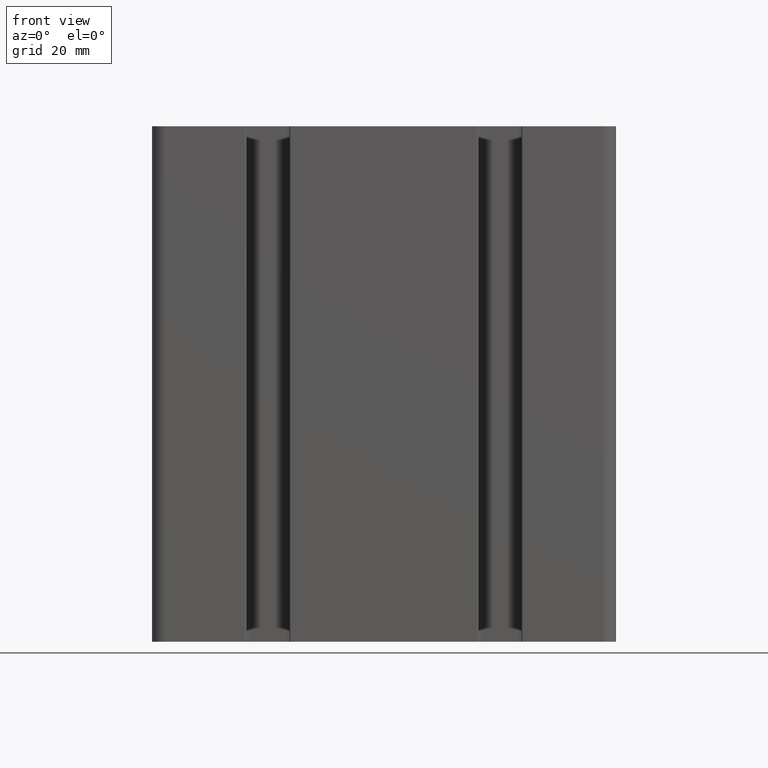
[diagram: clean part render]
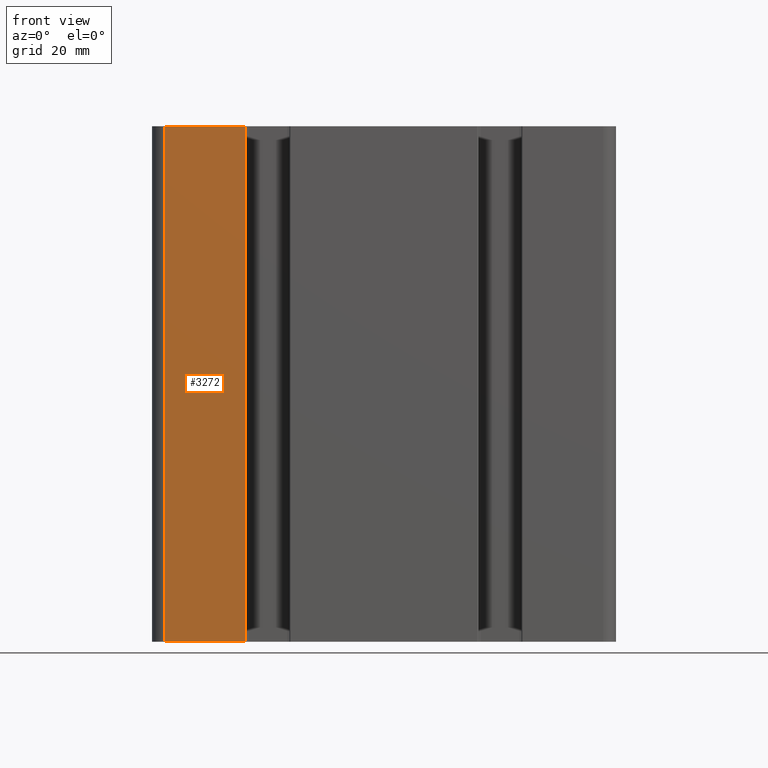
[diagram: same view with one face highlighted and labeled with its STEP entity id]
A machine part, front view. The second image highlights one B-rep face of the part: STEP entity #3272.
In plain terms, the highlighted planar face has unit normal (0, -1, 0).
Its self-contained STEP definition (entity closure, byte-faithful):
#97=PLANE('',#3569);
#246=FACE_OUTER_BOUND('',#414,.T.);
#414=EDGE_LOOP('',(#2591,#2592,#2593,#2594));
#716=LINE('',#5376,#1040);
#717=LINE('',#5379,#1041);
#718=LINE('',#5381,#1042);
#719=LINE('',#5382,#1043);
#1040=VECTOR('',#4399,100.);
#1041=VECTOR('',#4402,15.55);
#1042=VECTOR('',#4403,15.55);
#1043=VECTOR('',#4404,100.);
#1533=VERTEX_POINT('',#5372);
#1534=VERTEX_POINT('',#5374);
#1535=VERTEX_POINT('',#5378);
#1536=VERTEX_POINT('',#5380);
#1982=EDGE_CURVE('',#1533,#1534,#716,.T.);
#1983=EDGE_CURVE('',#1535,#1533,#717,.T.);
#1984=EDGE_CURVE('',#1536,#1534,#718,.T.);
#1985=EDGE_CURVE('',#1535,#1536,#719,.T.);
#2591=ORIENTED_EDGE('',*,*,#1983,.T.);
#2592=ORIENTED_EDGE('',*,*,#1982,.T.);
#2593=ORIENTED_EDGE('',*,*,#1984,.F.);
#2594=ORIENTED_EDGE('',*,*,#1985,.F.);
#3272=ADVANCED_FACE('',(#246),#97,.T.);
#3569=AXIS2_PLACEMENT_3D('',#5377,#4400,#4401);
#4399=DIRECTION('',(0.,0.,1.));
#4400=DIRECTION('center_axis',(0.,-1.,0.));
#4401=DIRECTION('ref_axis',(1.,0.,0.));
#4402=DIRECTION('',(1.,0.,0.));
#4403=DIRECTION('',(1.,0.,0.));
#4404=DIRECTION('',(0.,0.,1.));
#5372=CARTESIAN_POINT('',(-26.95,-22.5,0.));
#5374=CARTESIAN_POINT('',(-26.95,-22.5,100.));
#5376=CARTESIAN_POINT('',(-26.95,-22.5,0.));
#5377=CARTESIAN_POINT('Origin',(-42.5,-22.5,0.));
#5378=CARTESIAN_POINT('',(-42.5,-22.5,0.));
#5379=CARTESIAN_POINT('',(-42.5,-22.5,0.));
#5380=CARTESIAN_POINT('',(-42.5,-22.5,100.));
#5381=CARTESIAN_POINT('',(-42.5,-22.5,100.));
#5382=CARTESIAN_POINT('',(-42.5,-22.5,0.));